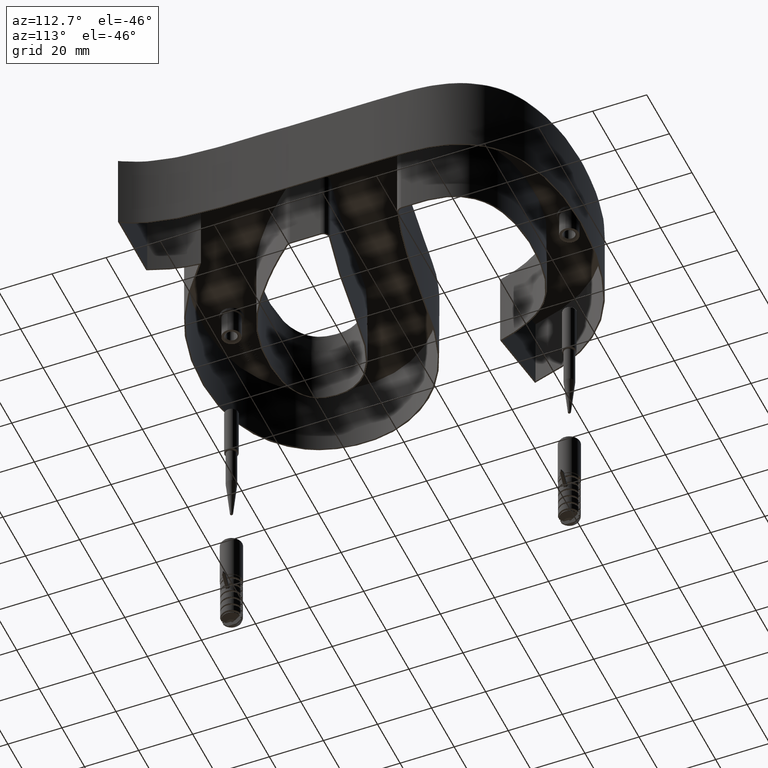
[diagram: clean part render]
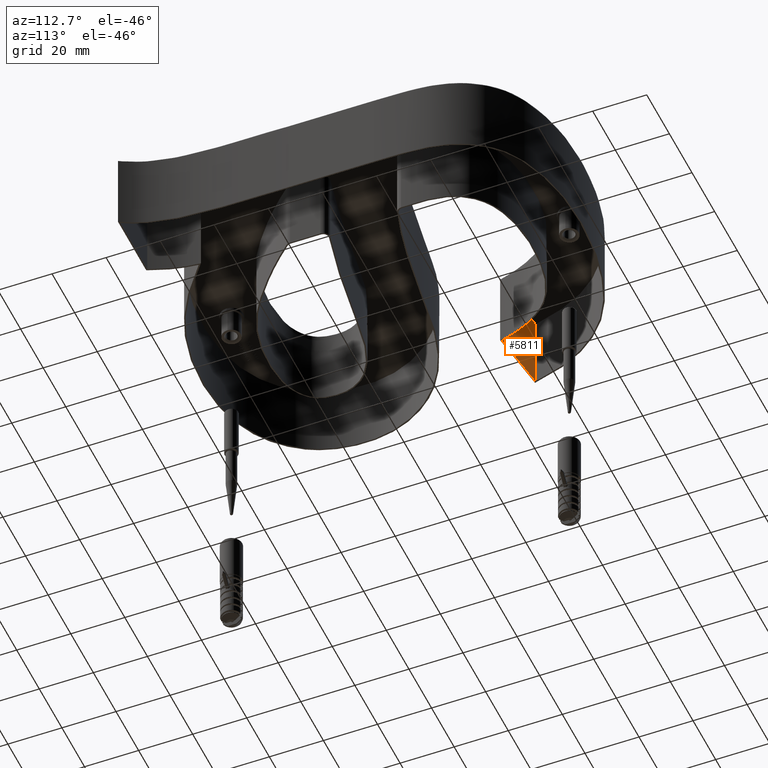
[diagram: same view with one face highlighted and labeled with its STEP entity id]
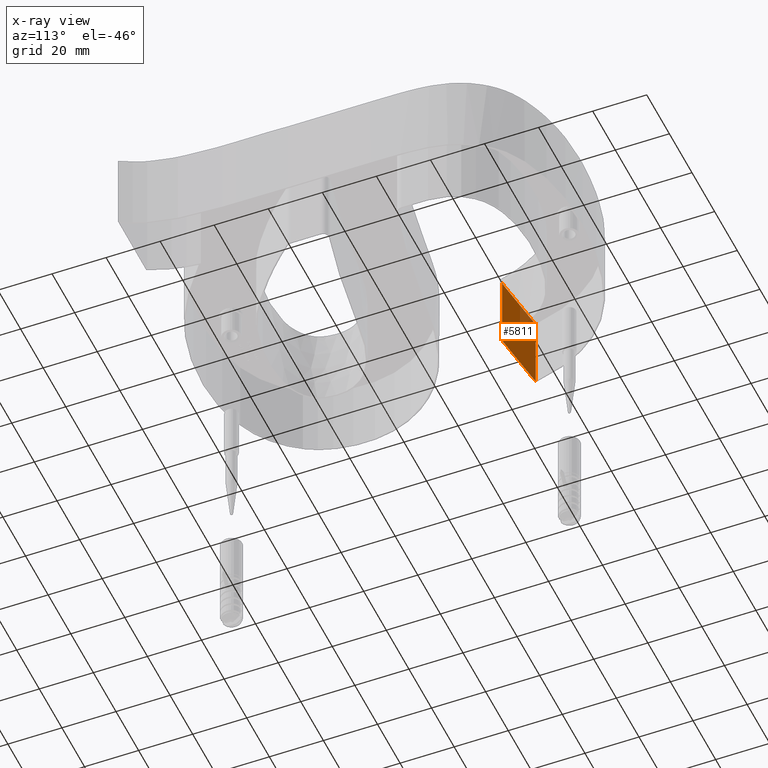
[diagram: x-ray of the same camera — body ghosted, the highlighted face saturated]
A machine part, auxiliary view. The second image highlights one B-rep face of the part: STEP entity #5811.
The next image is the same camera in x-ray: the body ghosted, the highlighted face saturated — about 7% of this face is hidden behind the body in this view.
In plain terms, the highlighted planar face has unit normal (0.1357, 0.9907, 0).
Its self-contained STEP definition (entity closure, byte-faithful):
#429 = ORIENTED_EDGE ( 'NONE', *, *, #19213, .T. ) ;
#1229 = VECTOR ( 'NONE', #13315, 1000.000000000000000 ) ;
#1257 = CARTESIAN_POINT ( 'NONE',  ( -43.38858832290239300, 105.3928725544253400, 0.0000000000000000000 ) ) ;
#1909 = EDGE_CURVE ( 'NONE', #27959, #13023, #18586, .T. ) ;
#2000 = DIRECTION ( 'NONE',  ( 0.1357496545282321800, 0.9907431712080915200, 0.0000000000000000000 ) ) ;
#3257 = CARTESIAN_POINT ( 'NONE',  ( -21.14028458762621200, 102.3444543228667500, -28.00000000000000000 ) ) ;
#4553 = CARTESIAN_POINT ( 'NONE',  ( -43.38858832290239300, 105.3928725544253400, -28.00000000000000000 ) ) ;
#4619 = ORIENTED_EDGE ( 'NONE', *, *, #21002, .F. ) ;
#4914 = VERTEX_POINT ( 'NONE', #1257 ) ;
#5255 = DIRECTION ( 'NONE',  ( -0.0000000000000000000, -0.0000000000000000000, 1.000000000000000000 ) ) ;
#5811 = ADVANCED_FACE ( 'NONE', ( #10065 ), #30183, .T. ) ;
#6836 = VECTOR ( 'NONE', #21586, 999.9999999999998900 ) ;
#8135 = EDGE_CURVE ( 'NONE', #27959, #23965, #21341, .T. ) ;
#8830 = DIRECTION ( 'NONE',  ( -0.9907431712080915200, 0.1357496545282321800, 0.0000000000000000000 ) ) ;
#10065 = FACE_OUTER_BOUND ( 'NONE', #27848, .T. ) ;
#13023 = VERTEX_POINT ( 'NONE', #4553 ) ;
#13315 = DIRECTION ( 'NONE',  ( -0.0000000000000000000, -0.0000000000000000000, 1.000000000000000000 ) ) ;
#13878 = LINE ( 'NONE', #20436, #24609 ) ;
#15527 = LINE ( 'NONE', #27428, #1229 ) ;
#16056 = CARTESIAN_POINT ( 'NONE',  ( 13.37504461555187900, 97.61523271284414700, -28.00000000000000000 ) ) ;
#17442 = CARTESIAN_POINT ( 'NONE',  ( -21.14028458762621200, 102.3444543228667500, 0.0000000000000000000 ) ) ;
#18433 = DIRECTION ( 'NONE',  ( -0.9907431712080914100, 0.1357496545282321500, 0.0000000000000000000 ) ) ;
#18586 = LINE ( 'NONE', #19138, #6836 ) ;
#18920 = AXIS2_PLACEMENT_3D ( 'NONE', #16056, #2000, #18433 ) ;
#19138 = CARTESIAN_POINT ( 'NONE',  ( 13.37504461555187900, 97.61523271284414700, -28.00000000000000000 ) ) ;
#19213 = EDGE_CURVE ( 'NONE', #13023, #4914, #15527, .T. ) ;
#19334 = CARTESIAN_POINT ( 'NONE',  ( -21.14028458762621200, 102.3444543228667500, -28.00000000000000000 ) ) ;
#20436 = CARTESIAN_POINT ( 'NONE',  ( 13.37504461555187900, 97.61523271284414700, 0.0000000000000000000 ) ) ;
#21002 = EDGE_CURVE ( 'NONE', #23965, #4914, #13878, .T. ) ;
#21341 = LINE ( 'NONE', #19334, #23917 ) ;
#21586 = DIRECTION ( 'NONE',  ( -0.9907431712080915200, 0.1357496545282321800, 0.0000000000000000000 ) ) ;
#21825 = ORIENTED_EDGE ( 'NONE', *, *, #1909, .T. ) ;
#22601 = ORIENTED_EDGE ( 'NONE', *, *, #8135, .F. ) ;
#23917 = VECTOR ( 'NONE', #5255, 1000.000000000000000 ) ;
#23965 = VERTEX_POINT ( 'NONE', #17442 ) ;
#24609 = VECTOR ( 'NONE', #8830, 999.9999999999998900 ) ;
#27428 = CARTESIAN_POINT ( 'NONE',  ( -43.38858832290239300, 105.3928725544253400, -28.00000000000000000 ) ) ;
#27848 = EDGE_LOOP ( 'NONE', ( #4619, #22601, #21825, #429 ) ) ;
#27959 = VERTEX_POINT ( 'NONE', #3257 ) ;
#30183 = PLANE ( 'NONE',  #18920 ) ;